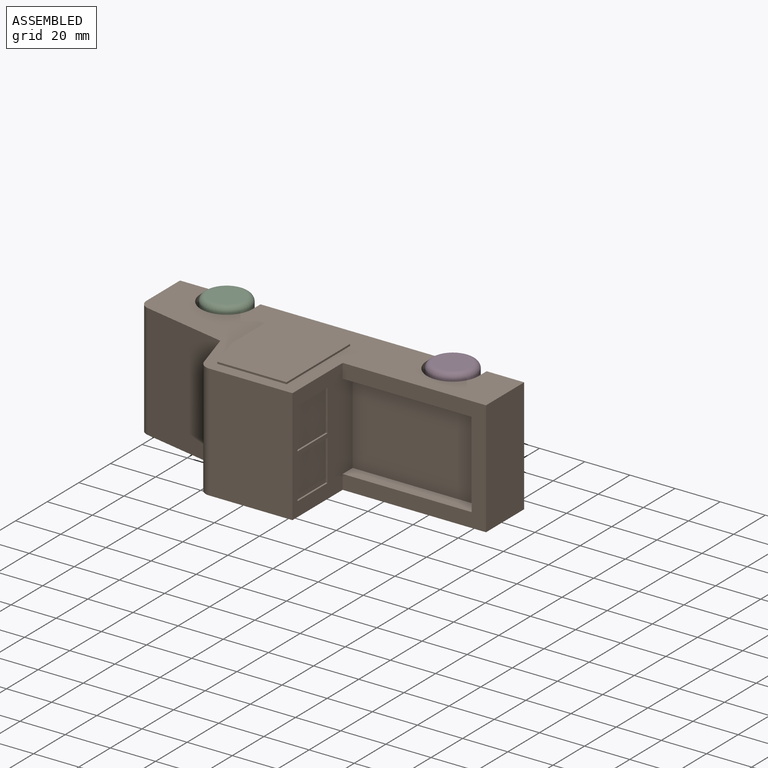
[diagram: assembled view]
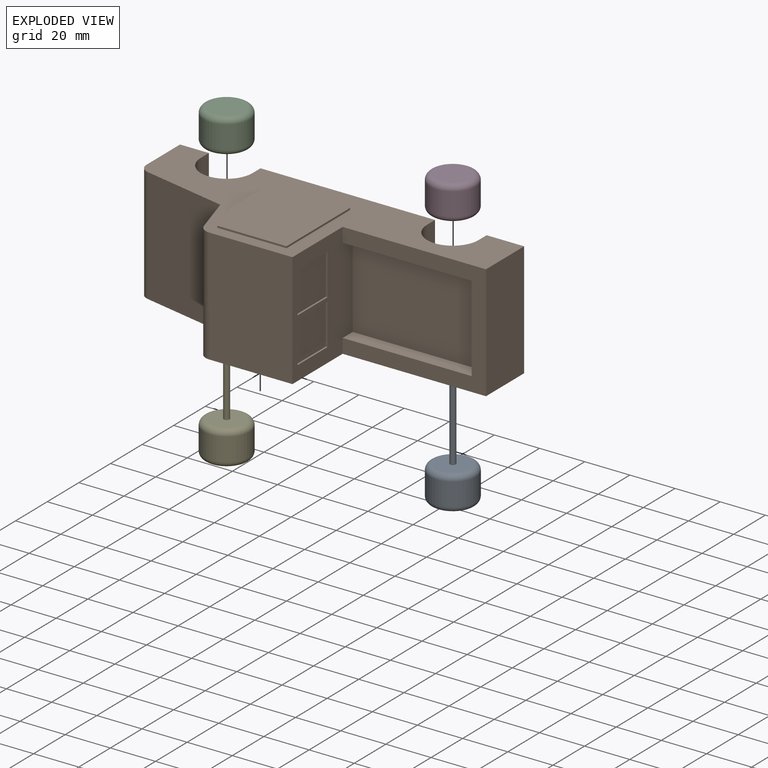
[diagram: exploded view]
GUIDED TOUR — MATED ASSEMBLY (Onshape document f75bfbf0f1ed032e9502031a, AutoMate assembly f75bfbf0f1ed032e9502031a_08e32ee1e0aaa2969070d386_a639f27beea9576678473115_default)

This assembly has 5 components, labeled P0..P4 below (a component is one placed occurrence of a part; the same part can appear more than once), held together by 4 mates. A mate is a constraint between two components; its type names the relative motion it leaves free:
  FASTENED — locks the two components together rigidly (no relative motion).
Axis/direction vectors are unit vectors and 'through' points are millimeter coordinates, both in the assembly's world frame.

MATES
  1. FASTENED "Fastened 4": P2 <-> P4, direction (0.000, 0.000, -1.000) through (-72.70, -48.30, 15.91) mm
  2. FASTENED "Fastened 3": P1 <-> P4, direction (0.000, 0.000, -1.000) through (-72.70, -48.30, -19.65) mm
  3. FASTENED "Fastened 1": P0 <-> P1, direction (0.000, 0.000, 1.000) through (27.46, -48.30, -19.65) mm
  4. FASTENED "Fastened 2": P3 <-> P0, direction (0.000, 0.000, -1.000) through (27.46, -48.30, 15.91) mm

ASSEMBLY ORDER
  1. P1 — the base component [order heuristic]
  2. P4 — core [order heuristic]
  3. P2 [order verified]
  4. P3 [order verified]
  5. P0 [order verified]
Order-tag legend:
  [order verified] — this step's position reverses a verified removal order: the component was checked to insert without passing through the ones already placed.
  [order heuristic] — the first 2 components form the assembly's core: parts whose collision-free extraction could not be verified, listed in mate-graph order.

Of the 5 components, 5 carry the full construction recipe — the FeatureScript program that regenerates the part's solid from scratch; the rest are supplied as boundary geometry only.
Each toured component is shown spotlighted twice — in the assembled view, then in the exploded view, where a leader line traces a displaced component back to its assembled socket (saturated green if recipe-attached, orange if geometry-only; every other component desaturated gray) — followed by its recipe or geometry summary and the mates that hold it.
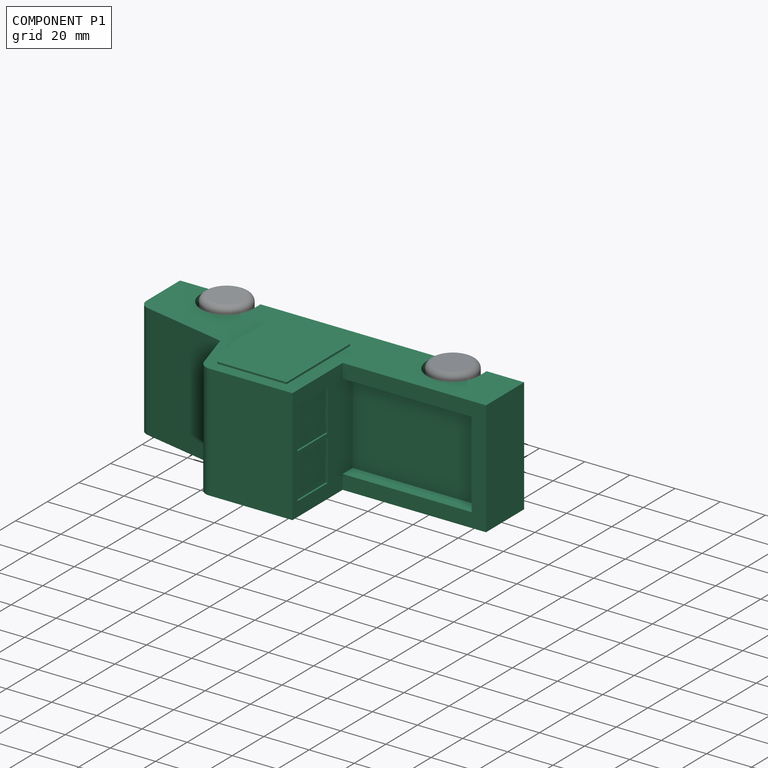
[diagram: component P1 — assembled]
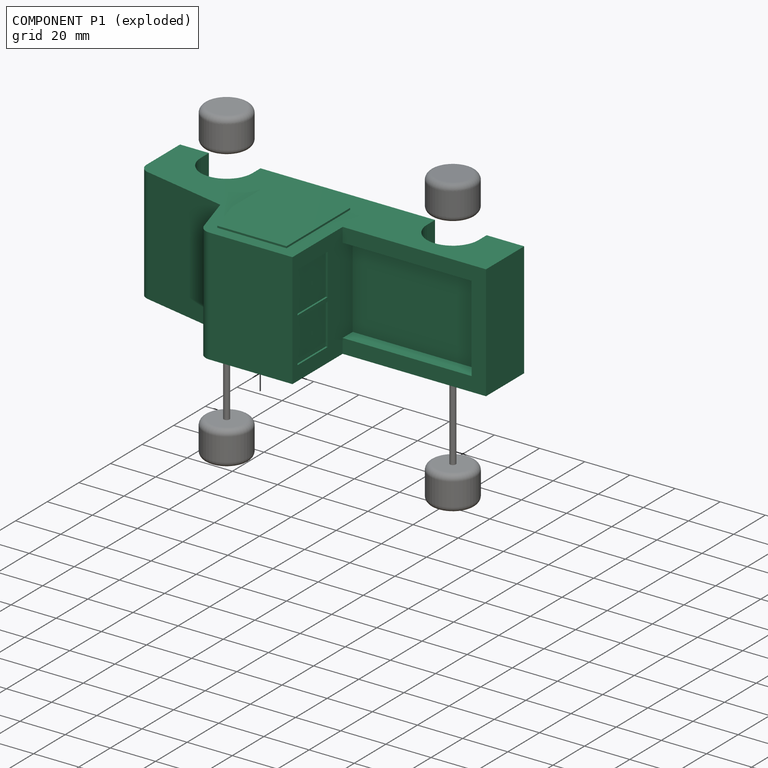
[diagram: component P1 — exploded]
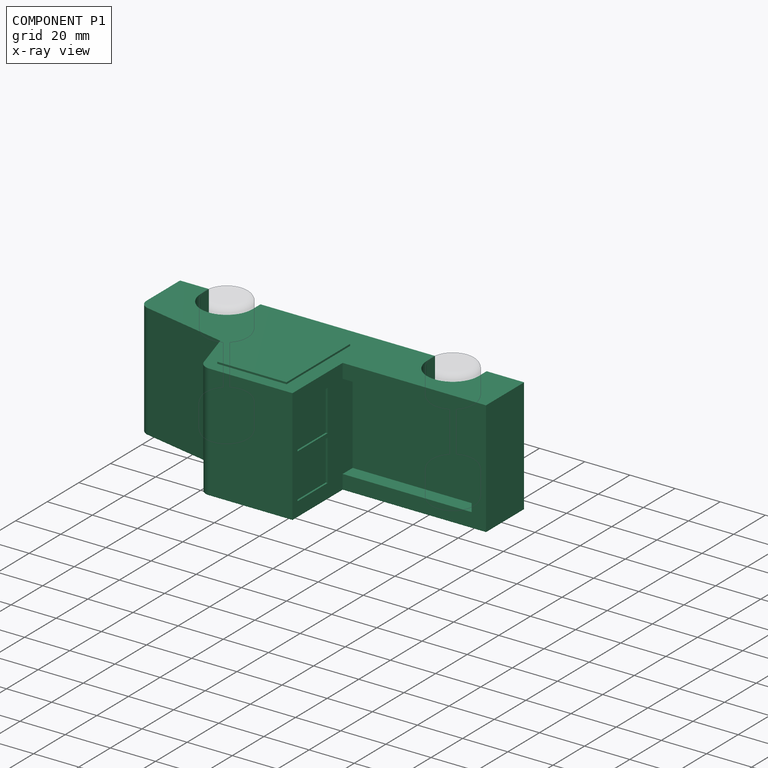
[diagram: component P1 — x-ray view]
COMPONENT P1 — recipe-attached (CADFS 00677583, mesh-verified: the recipe's output STEP matches this component's geometry to below the mesh-comparison resolution (tessellation chordal tolerance ~0.259 mm)).
Held by: FASTENED mate "Fastened 3" to P4; FASTENED mate "Fastened 1" to P0.
Construction recipe (FeatureScript — the CAD program that rebuilds this solid; sketch coordinates are in the units given by the * unit suffixes, e.g. mm):

FeatureScript 1511;
import(path : "onshape/std/geometry.fs", version : "1511.0");
import(path : "onshape/std/common.fs", version : "1511.0");
const mm = millimeter;
const VERTEX = EntityType.VERTEX;
const EDGE = EntityType.EDGE;
const FACE = EntityType.FACE;
const BODY = EntityType.BODY;
function v(x, y){return vector(x, y);}
function OD(order){return orderDisambiguation(order);}
function OSD(set){return originalSetDisambiguation(set);}
function TD(topology){return topologyDisambiguation(topology);}
function TDD(query){return trueDependencyDisambiguation(query);}
function sQuery(a, b, c) {return sketchEntityQuery(a, b, c);}

annotation { "Feature Type Name" : "Feature", "Feature Type Description" : "" }
export const myFeature = defineFeature(function(context is Context, id is Id, definition is map)
    precondition{}
    {
        {
            var Q0;
            Q0=qCreatedBy(makeId("Front.planeOp"),FACE);
            var sketch = newSketch(context, id + "F0", { "sketchPlane" : qUnion([Q0])});
            skLineSegment(sketch, "E0", {"start": v(-68.75, 0) * mm, "end": v(83.65, 0) * mm});
            skLineSegment(sketch, "E1", {"start": v(83.65, 0) * mm, "end": v(83.65, 19.05) * mm});
            skLineSegment(sketch, "E2", {"start": v(83.65, 19.05) * mm, "end": v(20.15, 19.05) * mm});
            skLineSegment(sketch, "E3", {"start": v(20.15, 19.05) * mm, "end": v(20.15, 50.8) * mm});
            skLineSegment(sketch, "E4", {"start": v(20.15, 50.8) * mm, "end": v(-20.49, 50.8) * mm});
            skLineSegment(sketch, "E5", {"start": v(-20.49, 50.8) * mm, "end": v(-27.1, 28.92) * mm});
            skLineSegment(sketch, "E6", {"start": v(-68.75, 0) * mm, "end": v(-68.75, 20.2) * mm});
            skLineSegment(sketch, "E7", {"start": v(-68.75, 20.2) * mm, "end": v(-27.1, 28.92) * mm});
            skArc(sketch, "E8", {"start": v(-33.12, 0) * mm, "mid": v(-44.55, 11.43) * mm, "end": v(-55.98, 0) * mm});
            skArc(sketch, "E9", {"start": v(67.04, 0) * mm, "mid": v(55.61, 11.43) * mm, "end": v(44.18, 0) * mm});
            skSolve(sketch);
        }
        {
            var Q0;
            Q0 = qSketchRegion(id + "F0", true);
            extrude(context, id + "F1", {"entities" : qUnion([Q0]), "depth" : 50.8 * mm, "offsetDistance" : 25.4 * mm});
        }
        {
            var Q0;
            Q0=makeQuery(id+"F1.opExtrude","SWEPT_FACE",FACE,{"disambiguationData":[OSD([sQuery(id+"F0.wireOp",EDGE,"E2")])]});
            var sketch = newSketch(context, id + "F2", { "sketchPlane" : qUnion([Q0])});
            skLineSegment(sketch, "E10", {"start": v(20.15, -6.35) * mm, "end": v(77.3, -6.35) * mm});
            skLineSegment(sketch, "E11", {"start": v(77.3, -6.35) * mm, "end": v(77.3, -44.45) * mm});
            skLineSegment(sketch, "E12", {"start": v(77.3, -44.45) * mm, "end": v(20.15, -44.45) * mm});
            skLineSegment(sketch, "E13", {"start": v(20.15, -44.45) * mm, "end": v(20.15, -6.35) * mm});
            skSolve(sketch);
        }
        {
            var Q0;
            Q0=makeQuery(id+"F2.imprint","IMPRINT",FACE,{"disambiguationData":[TD([[makeQuery(id+"F2.imprint","IMPRINT",EDGE,{"derivedFrom":sQuery(id+"F2.wireOp",EDGE,"E10")}),-1.0]])]});
            extrude(context, id + "F3", {"entities" : qUnion([Q0]), "operationType" : NewBodyOperationType.REMOVE, "oppositeDirection" : true, "depth" : 6.35 * mm, "offsetDistance" : 25.4 * mm});
        }
        {
            var Q0;
            Q0=makeQuery(id+"F1.opExtrude","SWEPT_FACE",FACE,{"disambiguationData":[OSD([sQuery(id+"F0.wireOp",EDGE,"E6")])]});
            var sketch = newSketch(context, id + "F4", { "sketchPlane" : qUnion([Q0])});
            skCircle(sketch, "E14", {"center": v(6.35, 9.84) * mm, "radius": 2.67 * mm});
            skCircle(sketch, "E15", {"center": v(44.45, 9.84) * mm, "radius": 2.67 * mm});
            skLineSegment(sketch, "E16.bottom", {"start": v(36.96, 6.5) * mm, "end": v(13.84, 6.5) * mm});
            skLineSegment(sketch, "E16.top", {"start": v(36.96, 13.1) * mm, "end": v(13.84, 13.1) * mm});
            skLineSegment(sketch, "E16.left", {"start": v(36.96, 6.5) * mm, "end": v(36.96, 13.1) * mm});
            skLineSegment(sketch, "E16.right", {"start": v(13.84, 6.5) * mm, "end": v(13.84, 13.1) * mm});
            skPoint(sketch, "E16.middle", {"position": v(25.4, 9.8) * mm});
            skLineSegment(sketch, "E17.bottom", {"start": v(36.2, 7.27) * mm, "end": v(14.6, 7.27) * mm});
            skLineSegment(sketch, "E17.top", {"start": v(36.2, 12.35) * mm, "end": v(14.6, 12.35) * mm});
            skLineSegment(sketch, "E17.left", {"start": v(36.2, 7.27) * mm, "end": v(36.2, 12.35) * mm});
            skLineSegment(sketch, "E17.right", {"start": v(14.6, 7.27) * mm, "end": v(14.6, 12.35) * mm});
            skLineSegment(sketch, "E18", {"start": v(18.18, 12.35) * mm, "end": v(18.18, 7.27) * mm});
            skLineSegment(sketch, "E19", {"start": v(19.16, 12.35) * mm, "end": v(19.16, 7.27) * mm});
            skLineSegment(sketch, "E20.1.0.0", {"start": v(21.56, 12.35) * mm, "end": v(21.56, 7.27) * mm});
            skLineSegment(sketch, "E20.1.0.1", {"start": v(22.54, 12.35) * mm, "end": v(22.54, 7.27) * mm});
            skLineSegment(sketch, "E20.2.0.0", {"start": v(24.94, 12.35) * mm, "end": v(24.94, 7.27) * mm});
            skLineSegment(sketch, "E20.2.0.1", {"start": v(25.92, 12.35) * mm, "end": v(25.92, 7.27) * mm});
            skLineSegment(sketch, "E20.3.0.0", {"start": v(28.32, 12.35) * mm, "end": v(28.32, 7.27) * mm});
            skLineSegment(sketch, "E20.3.0.1", {"start": v(29.3, 12.35) * mm, "end": v(29.3, 7.27) * mm});
            skLineSegment(sketch, "E20.4.0.0", {"start": v(31.7, 12.35) * mm, "end": v(31.7, 7.27) * mm});
            skLineSegment(sketch, "E20.4.0.1", {"start": v(32.67, 12.35) * mm, "end": v(32.67, 7.27) * mm});
            skLineSegment(sketch, "E20.direction1", {"start": v(18.18, 7.27) * mm, "end": v(21.56, 7.27) * mm, "construction": true});
            skSolve(sketch);
        }
        {
            var Q0;
            Q0=makeQuery(id+"F4.imprint","IMPRINT",FACE,{"disambiguationData":[TD([[makeQuery(id+"F4.imprint","IMPRINT",EDGE,{"derivedFrom":sQuery(id+"F4.wireOp",EDGE,"E16.bottom")}),-1.0]])]});
            var Q1;
            {var subQ0=sQuery(id+"F4.wireOp",EDGE,"E18");Q1=makeQuery(id+"F4.imprint","IMPRINT",FACE,{"disambiguationData":[TD([[makeQuery(id+"F4.imprint","IMPRINT",EDGE,{"derivedFrom":subQ0}),1.0]])]});}
            var Q2;
            {var subQ0=sQuery(id+"F4.wireOp",EDGE,"E20.1.0.0");Q2=makeQuery(id+"F4.imprint","IMPRINT",FACE,{"disambiguationData":[TD([[makeQuery(id+"F4.imprint","IMPRINT",EDGE,{"derivedFrom":subQ0}),1.0]])]});}
            var Q3;
            {var subQ0=sQuery(id+"F4.wireOp",EDGE,"E20.2.0.0");Q3=makeQuery(id+"F4.imprint","IMPRINT",FACE,{"disambiguationData":[TD([[makeQuery(id+"F4.imprint","IMPRINT",EDGE,{"derivedFrom":subQ0}),1.0]])]});}
            var Q4;
            {var subQ0=sQuery(id+"F4.wireOp",EDGE,"E20.3.0.0");Q4=makeQuery(id+"F4.imprint","IMPRINT",FACE,{"disambiguationData":[TD([[makeQuery(id+"F4.imprint","IMPRINT",EDGE,{"derivedFrom":subQ0}),1.0]])]});}
            var Q5;
            {var subQ0=sQuery(id+"F4.wireOp",EDGE,"E20.4.0.0");Q5=makeQuery(id+"F4.imprint","IMPRINT",FACE,{"disambiguationData":[TD([[makeQuery(id+"F4.imprint","IMPRINT",EDGE,{"derivedFrom":subQ0}),1.0]])]});}
            extrude(context, id + "F5", {"entities" : qUnion([Q0, Q1, Q2, Q3, Q4, Q5]), "operationType" : NewBodyOperationType.ADD, "depth" : 2.54 * mm, "offsetDistance" : 25.4 * mm});
        }
        {
            var Q0;
            Q0=makeQuery(id+"F4.imprint","IMPRINT",FACE,{"disambiguationData":[TD([[makeQuery(id+"F4.imprint","IMPRINT",EDGE,{"derivedFrom":sQuery(id+"F4.wireOp",EDGE,"E14")}),1.0]])]});
            var Q1;
            Q1=makeQuery(id+"F4.imprint","IMPRINT",FACE,{"disambiguationData":[TD([[makeQuery(id+"F4.imprint","IMPRINT",EDGE,{"derivedFrom":sQuery(id+"F4.wireOp",EDGE,"E15")}),1.0]])]});
            extrude(context, id + "F6", {"entities" : qUnion([Q0, Q1]), "operationType" : NewBodyOperationType.ADD, "depth" : 1.27 * mm, "offsetDistance" : 25.4 * mm});
        }
        {
            var Q0;
            Q0=makeQuery(id+"F1.opExtrude","SWEPT_FACE",FACE,{"disambiguationData":[OSD([sQuery(id+"F0.wireOp",EDGE,"E5")])]});
            var sketch = newSketch(context, id + "F7", { "sketchPlane" : qUnion([Q0])});
            skLineSegment(sketch, "E21.bottom", {"start": v(47.98, 22.7) * mm, "end": v(2.26, 22.7) * mm});
            skLineSegment(sketch, "E21.top", {"start": v(47.98, 40.22) * mm, "end": v(2.26, 40.22) * mm});
            skLineSegment(sketch, "E21.left", {"start": v(47.98, 22.7) * mm, "end": v(47.98, 40.22) * mm});
            skLineSegment(sketch, "E21.right", {"start": v(2.26, 22.7) * mm, "end": v(2.26, 40.22) * mm});
            skPoint(sketch, "E21.middle", {"position": v(25.12, 31.46) * mm});
            skLineSegment(sketch, "E22", {"start": v(33.56, 22.7) * mm, "end": v(32.22, 29.14) * mm});
            skLineSegment(sketch, "E23", {"start": v(32.22, 29.14) * mm, "end": v(29.43, 33.12) * mm});
            skLineSegment(sketch, "E24", {"start": v(29.43, 33.12) * mm, "end": v(30.82, 29.14) * mm});
            skPoint(sketch, "E24.endSnap0", {"position": v(30.82, 31.13) * mm});
            skLineSegment(sketch, "E25", {"start": v(30.82, 29.14) * mm, "end": v(32.22, 22.7) * mm});
            skLineSegment(sketch, "E26.1.0.0", {"start": v(17.81, 22.7) * mm, "end": v(16.47, 29.14) * mm});
            skLineSegment(sketch, "E26.1.0.1", {"start": v(16.47, 29.14) * mm, "end": v(13.68, 33.12) * mm});
            skLineSegment(sketch, "E26.1.0.2", {"start": v(13.68, 33.12) * mm, "end": v(15.08, 29.14) * mm});
            skLineSegment(sketch, "E26.1.0.3", {"start": v(15.08, 29.14) * mm, "end": v(16.47, 22.7) * mm});
            skLineSegment(sketch, "E26.direction1", {"start": v(33.56, 22.7) * mm, "end": v(17.81, 22.7) * mm, "construction": true});
            skSolve(sketch);
        }
        {
            var Q0;
            Q0=makeQuery(id+"F7.imprint","IMPRINT",FACE,{"disambiguationData":[TD([[makeQuery(id+"F7.imprint","IMPRINT",EDGE,{"derivedFrom":sQuery(id+"F7.wireOp",EDGE,"E21.top")}),1.0]])]});
            extrude(context, id + "F8", {"entities" : qUnion([Q0]), "operationType" : NewBodyOperationType.REMOVE, "oppositeDirection" : true, "depth" : 0.8 * mm, "offsetDistance" : 25.4 * mm});
        }
        {
            var Q0;
            Q0=makeQuery(id+"F1.opExtrude","SWEPT_EDGE",EDGE,{"disambiguationData":[OSD([sQuery(id+"F0.wireOp",EDGE,"E6"),sQuery(id+"F0.wireOp",EDGE,"E7")])]});
            var Q1;
            Q1=makeQuery(id+"F1.opExtrude","SWEPT_EDGE",EDGE,{"disambiguationData":[OSD([sQuery(id+"F0.wireOp",EDGE,"E4"),sQuery(id+"F0.wireOp",EDGE,"E5")])]});
            fillet(context, id + "F9", {"entities" : qUnion([Q0, Q1]), "radius" : 5.08 * mm, "tangentPropagation" : true, "allowEdgeOverflow" : false});
        }
        {
            var Q0;
            Q0=makeQuery(id+"F1.opExtrude","CAP_FACE",FACE,{"disambiguationData":[OSD([sQuery(id+"F0.wireOp",EDGE,"E0"),sQuery(id+"F0.wireOp",EDGE,"E1"),sQuery(id+"F0.wireOp",EDGE,"E2"),sQuery(id+"F0.wireOp",EDGE,"E3"),sQuery(id+"F0.wireOp",EDGE,"E4"),sQuery(id+"F0.wireOp",EDGE,"E5"),sQuery(id+"F0.wireOp",EDGE,"E6"),sQuery(id+"F0.wireOp",EDGE,"E7")])],"isStart":false});
            var sketch = newSketch(context, id + "F10", { "sketchPlane" : qUnion([Q0])});
            skLineSegment(sketch, "E27", {"start": v(-16.71, 45.72) * mm, "end": v(-21.58, 29.64) * mm});
            skLineSegment(sketch, "E28", {"start": v(-21.58, 29.64) * mm, "end": v(-21.58, 5.51) * mm});
            skLineSegment(sketch, "E29", {"start": v(-21.58, 5.51) * mm, "end": v(13.98, 5.51) * mm});
            skLineSegment(sketch, "E30", {"start": v(13.98, 5.51) * mm, "end": v(14, 45.72) * mm});
            skLineSegment(sketch, "E31", {"start": v(-16.71, 45.72) * mm, "end": v(14, 45.72) * mm});
            skSolve(sketch);
        }
        {
            var Q0;
            Q0=makeQuery(id+"F10.imprint","IMPRINT",FACE,{"disambiguationData":[TD([[makeQuery(id+"F10.imprint","IMPRINT",EDGE,{"derivedFrom":sQuery(id+"F10.wireOp",EDGE,"E27")}),1.0]])]});
            extrude(context, id + "F11", {"entities" : qUnion([Q0]), "operationType" : NewBodyOperationType.ADD, "depth" : 0.8 * mm, "offsetDistance" : 25.4 * mm});
        }
        {
            var Q0;
            Q0=makeQuery(id+"F1.opExtrude","CAP_FACE",FACE,{"disambiguationData":[OSD([sQuery(id+"F0.wireOp",EDGE,"E0"),sQuery(id+"F0.wireOp",EDGE,"E1"),sQuery(id+"F0.wireOp",EDGE,"E2"),sQuery(id+"F0.wireOp",EDGE,"E3"),sQuery(id+"F0.wireOp",EDGE,"E4"),sQuery(id+"F0.wireOp",EDGE,"E5"),sQuery(id+"F0.wireOp",EDGE,"E6"),sQuery(id+"F0.wireOp",EDGE,"E7")])],"isStart":true});
            var sketch = newSketch(context, id + "F12", { "sketchPlane" : qUnion([Q0])});
            skLineSegment(sketch, "E32", {"start": v(16.71, 45.72) * mm, "end": v(21.57, 29.65) * mm});
            skLineSegment(sketch, "E33", {"start": v(21.57, 29.65) * mm, "end": v(21.57, 5.52) * mm});
            skLineSegment(sketch, "E34", {"start": v(21.57, 5.52) * mm, "end": v(-14, 5.52) * mm});
            skLineSegment(sketch, "E35", {"start": v(-14, 5.52) * mm, "end": v(-14, 45.72) * mm});
            skLineSegment(sketch, "E36", {"start": v(-14, 45.72) * mm, "end": v(16.71, 45.72) * mm});
            skSolve(sketch);
        }
        {
            var Q0;
            Q0=makeQuery(id+"F12.imprint","IMPRINT",FACE,{"disambiguationData":[TD([[makeQuery(id+"F12.imprint","IMPRINT",EDGE,{"derivedFrom":sQuery(id+"F12.wireOp",EDGE,"E32")}),-1.0]])]});
            extrude(context, id + "F13", {"entities" : qUnion([Q0]), "operationType" : NewBodyOperationType.ADD, "depth" : 0.8 * mm, "offsetDistance" : 25.4 * mm});
        }
        {
            var Q0;
            Q0=makeQuery(id+"F13.opExtrude","CAP_FACE",FACE,{"disambiguationData":[OSD([sQuery(id+"F12.wireOp",EDGE,"E32"),sQuery(id+"F12.wireOp",EDGE,"E33"),sQuery(id+"F12.wireOp",EDGE,"E34"),sQuery(id+"F12.wireOp",EDGE,"E35"),sQuery(id+"F12.wireOp",EDGE,"E36")])],"isStart":false});
            var sketch = newSketch(context, id + "F14", { "sketchPlane" : qUnion([Q0])});
            skLineSegment(sketch, "E37", {"start": v(18.82, 29.65) * mm, "end": v(14.9, 43.16) * mm});
            skLineSegment(sketch, "E38", {"start": v(14.9, 43.16) * mm, "end": v(-11.56, 43.16) * mm});
            skLineSegment(sketch, "E39", {"start": v(-11.56, 43.16) * mm, "end": v(-11.56, 29.65) * mm});
            skLineSegment(sketch, "E40", {"start": v(-11.56, 29.65) * mm, "end": v(18.82, 29.65) * mm});
            skLineSegment(sketch, "E41.bottom", {"start": v(-11.56, 22.39) * mm, "end": v(-7, 22.39) * mm});
            skLineSegment(sketch, "E41.top", {"start": v(-11.56, 20.6) * mm, "end": v(-7, 20.6) * mm});
            skLineSegment(sketch, "E41.left", {"start": v(-11.56, 22.39) * mm, "end": v(-11.56, 20.6) * mm});
            skLineSegment(sketch, "E41.right", {"start": v(-7, 22.39) * mm, "end": v(-7, 20.6) * mm});
            skSolve(sketch);
        }
        {
            var Q0;
            Q0=makeQuery(id+"F14.imprint","IMPRINT",FACE,{"disambiguationData":[TD([[makeQuery(id+"F14.imprint","IMPRINT",EDGE,{"derivedFrom":sQuery(id+"F14.wireOp",EDGE,"E37")}),1.0]])]});
            extrude(context, id + "F15", {"entities" : qUnion([Q0]), "operationType" : NewBodyOperationType.ADD, "oppositeDirection" : true, "depth" : 0.25 * mm, "offsetDistance" : 25.4 * mm});
        }
        {
            var Q0;
            Q0=makeQuery(id+"F3.boolean.opBoolean","MERGE",FACE,{"derivedFrom":[makeQuery(id+"F1.opExtrude","SWEPT_FACE",FACE,{"disambiguationData":[OSD([sQuery(id+"F0.wireOp",EDGE,"E3")])]}),makeQuery(id+"F3.opExtrude","SWEPT_FACE",FACE,{"disambiguationData":[OSD([sQuery(id+"F2.wireOp",EDGE,"E13")])]})]});
            var sketch = newSketch(context, id + "F16", { "sketchPlane" : qUnion([Q0])});
            skLineSegment(sketch, "E42.bottom", {"start": v(-6.35, 28.57) * mm, "end": v(-44.45, 28.57) * mm});
            skLineSegment(sketch, "E42.top", {"start": v(-6.35, 47.62) * mm, "end": v(-44.45, 47.62) * mm});
            skLineSegment(sketch, "E42.left", {"start": v(-6.35, 28.57) * mm, "end": v(-6.35, 47.62) * mm});
            skLineSegment(sketch, "E42.right", {"start": v(-44.45, 28.57) * mm, "end": v(-44.45, 47.62) * mm});
            skPoint(sketch, "E42.middle", {"position": v(-25.4, 38.1) * mm});
            skLineSegment(sketch, "E43.bottom", {"start": v(-24.51, 28.57) * mm, "end": v(-26.29, 28.57) * mm});
            skLineSegment(sketch, "E43.top", {"start": v(-24.51, 47.62) * mm, "end": v(-26.29, 47.62) * mm});
            skLineSegment(sketch, "E43.left", {"start": v(-24.51, 28.57) * mm, "end": v(-24.51, 47.62) * mm});
            skLineSegment(sketch, "E43.right", {"start": v(-26.29, 28.57) * mm, "end": v(-26.29, 47.62) * mm});
            skSolve(sketch);
        }
        {
            var Q0;
            {var subQ0=sQuery(id+"F16.wireOp",EDGE,"E42.right");Q0=makeQuery(id+"F16.imprint","IMPRINT",FACE,{"disambiguationData":[TD([[makeQuery(id+"F16.imprint","IMPRINT",EDGE,{"derivedFrom":subQ0}),-1.0]])]});}
            var Q1;
            {var subQ0=sQuery(id+"F16.wireOp",EDGE,"E42.left");Q1=makeQuery(id+"F16.imprint","IMPRINT",FACE,{"disambiguationData":[TD([[makeQuery(id+"F16.imprint","IMPRINT",EDGE,{"derivedFrom":subQ0}),1.0]])]});}
            extrude(context, id + "F17", {"entities" : qUnion([Q0, Q1]), "operationType" : NewBodyOperationType.REMOVE, "oppositeDirection" : true, "depth" : 0.8 * mm, "offsetDistance" : 25.4 * mm});
        }
        {
            var Q0;
            {var subQ0=sQuery(id+"F0.wireOp",EDGE,"E9");Q0=makeQuery(id+"F0.imprint","IMPRINT",FACE,{"disambiguationData":[TD([[makeQuery(id+"F0.imprint","IMPRINT",EDGE,{"derivedFrom":subQ0}),1.0]])]});}
            var Q1;
            {var subQ0=sQuery(id+"F0.wireOp",EDGE,"E8");Q1=makeQuery(id+"F0.imprint","IMPRINT",FACE,{"disambiguationData":[TD([[makeQuery(id+"F0.imprint","IMPRINT",EDGE,{"derivedFrom":subQ0}),1.0]])]});}
            extrude(context, id + "F18", {"entities" : qUnion([Q0, Q1]), "operationType" : NewBodyOperationType.REMOVE, "depth" : 50.8 * mm, "offsetDistance" : 25.4 * mm});
        }
        {
            var Q0;
            {var subQ0=sQuery(id+"F0.wireOp",EDGE,"E7");var subQ1=sQuery(id+"F0.wireOp",EDGE,"E6");var subQ2=sQuery(id+"F0.wireOp",EDGE,"E5");var subQ3=sQuery(id+"F0.wireOp",EDGE,"E4");var subQ4=sQuery(id+"F0.wireOp",EDGE,"E3");var subQ5=sQuery(id+"F0.wireOp",EDGE,"E2");var subQ6=sQuery(id+"F0.wireOp",EDGE,"E1");var subQ7=sQuery(id+"F0.wireOp",EDGE,"E0");Q0=makeQuery(id+"F18.boolean.opBoolean","SPLIT",FACE,{"disambiguationData":[TD([makeQuery(id+"F1.opExtrude","CAP_FACE",FACE,{"disambiguationData":[OSD([subQ7,subQ6,subQ5,subQ4,subQ3,subQ2,subQ1,subQ0])],"isStart":true}),makeQuery(id+"F1.opExtrude","CAP_FACE",FACE,{"disambiguationData":[OSD([subQ7,subQ6,subQ5,subQ4,subQ3,subQ2,subQ1,subQ0])],"isStart":false}),makeQuery(id+"F1.opExtrude","SWEPT_FACE",FACE,{"disambiguationData":[OSD([subQ1])]}),makeQuery(id+"F18.opExtrude","SWEPT_FACE",FACE,{"disambiguationData":[OSD([sQuery(id+"F0.wireOp",EDGE,"E8")])]})])],"derivedFrom":makeQuery(id+"F1.opExtrude","SWEPT_FACE",FACE,{"disambiguationData":[OSD([subQ7])]})});}
            var sketch = newSketch(context, id + "F19", { "sketchPlane" : qUnion([Q0])});
            skLineSegment(sketch, "E44.bottom", {"start": v(69.82, 12.7) * mm, "end": v(-57.18, 12.7) * mm});
            skLineSegment(sketch, "E44.top", {"start": v(69.82, 38.1) * mm, "end": v(-57.18, 38.1) * mm});
            skLineSegment(sketch, "E44.left", {"start": v(69.82, 12.7) * mm, "end": v(69.82, 38.1) * mm});
            skLineSegment(sketch, "E44.right", {"start": v(-57.18, 12.7) * mm, "end": v(-57.18, 38.1) * mm});
            skPoint(sketch, "E44.middle", {"position": v(6.32, 25.4) * mm});
            skSolve(sketch);
        }
        {
            var Q0;
            Q0 = qSketchRegion(id + "F19", true);
            extrude(context, id + "F20", {"entities" : qUnion([Q0]), "operationType" : NewBodyOperationType.ADD, "oppositeDirection" : true, "depth" : 12.7 * mm, "offsetDistance" : 25.4 * mm});
        }
        {
            var Q0;
            {var subQ0=sQuery(id+"F0.wireOp",EDGE,"E7");var subQ1=sQuery(id+"F0.wireOp",EDGE,"E6");var subQ2=sQuery(id+"F0.wireOp",EDGE,"E5");var subQ3=sQuery(id+"F0.wireOp",EDGE,"E4");var subQ4=sQuery(id+"F0.wireOp",EDGE,"E3");var subQ5=sQuery(id+"F0.wireOp",EDGE,"E2");var subQ6=sQuery(id+"F0.wireOp",EDGE,"E1");var subQ7=sQuery(id+"F0.wireOp",EDGE,"E0");var subQ8=makeQuery(id+"F1.opExtrude","CAP_FACE",FACE,{"disambiguationData":[OSD([subQ7,subQ6,subQ5,subQ4,subQ3,subQ2,subQ1,subQ0])],"isStart":true});var subQ9=makeQuery(id+"F1.opExtrude","CAP_FACE",FACE,{"disambiguationData":[OSD([subQ7,subQ6,subQ5,subQ4,subQ3,subQ2,subQ1,subQ0])],"isStart":false});var subQ10=makeQuery(id+"F18.opExtrude","SWEPT_FACE",FACE,{"disambiguationData":[OSD([sQuery(id+"F0.wireOp",EDGE,"E8")])]});var subQ11=makeQuery(id+"F18.opExtrude","SWEPT_FACE",FACE,{"disambiguationData":[OSD([sQuery(id+"F0.wireOp",EDGE,"E9")])]});var subQ12=makeQuery(id+"F1.opExtrude","SWEPT_FACE",FACE,{"disambiguationData":[OSD([subQ7])]});Q0=makeQuery(id+"F20.boolean.opBoolean","MERGE",FACE,{"derivedFrom":[makeQuery(id+"F18.boolean.opBoolean","SPLIT",FACE,{"disambiguationData":[TD([subQ8,subQ9,makeQuery(id+"F1.opExtrude","SWEPT_FACE",FACE,{"disambiguationData":[OSD([subQ1])]}),subQ10])],"derivedFrom":subQ12}),makeQuery(id+"F18.boolean.opBoolean","SPLIT",FACE,{"disambiguationData":[TD([subQ8,subQ9,makeQuery(id+"F1.opExtrude","SWEPT_FACE",FACE,{"disambiguationData":[OSD([subQ6])]}),subQ11])],"derivedFrom":subQ12}),makeQuery(id+"F18.boolean.opBoolean","SPLIT",FACE,{"disambiguationData":[TD([subQ8,subQ9,subQ10,subQ11])],"derivedFrom":subQ12}),makeQuery(id+"F20.opExtrude","CAP_FACE",FACE,{"disambiguationData":[OSD([sQuery(id+"F19.wireOp",EDGE,"E44.bottom"),sQuery(id+"F19.wireOp",EDGE,"E44.top"),sQuery(id+"F19.wireOp",EDGE,"E44.left"),sQuery(id+"F19.wireOp",EDGE,"E44.right")])],"isStart":true})]});}
            extrude(context, id + "F21", {"entities" : qUnion([Q0]), "operationType" : NewBodyOperationType.ADD, "depth" : 5.08 * mm, "offsetDistance" : 25.4 * mm});
        }
        {
            var Q0;
            {var subQ1=makeQuery(id+"F18.boolean.opBoolean","COPY",FACE,{"derivedFrom":makeQuery(id+"F18.opExtrude","SWEPT_FACE",FACE,{"disambiguationData":[OSD([sQuery(id+"F0.wireOp",EDGE,"E9")])]})});var subQ2=sQuery(id+"F19.wireOp",EDGE,"E44.bottom");var subQ3=makeQuery(id+"F20.opExtrude","SWEPT_FACE",FACE,{"disambiguationData":[OSD([subQ2])]});Q0=makeQuery(id+"F21.boolean.opBoolean","MERGE",FACE,{"derivedFrom":[makeQuery(id+"F20.boolean.opBoolean","SPLIT",FACE,{"disambiguationData":[TD([subQ1])],"derivedFrom":subQ3}),makeQuery(id+"F21.opExtrude","SWEPT_FACE",FACE,{"disambiguationData":[OSD([subQ2]),TDD([makeQuery(id+"F20.boolean.opBoolean","SPLIT",EDGE,{"disambiguationData":[TD([subQ1])],"derivedFrom":makeQuery(id+"F20.opExtrude","CAP_EDGE",EDGE,{"disambiguationData":[OSD([subQ2])],"isStart":true})})])]})]});}
            var sketch = newSketch(context, id + "F22", { "sketchPlane" : qUnion([Q0])});
            skCircle(sketch, "E45", {"center": v(-55.61, 0) * mm, "radius": 1.4 * mm});
            skSolve(sketch);
        }
        {
            var Q0;
            {var subQ1=makeQuery(id+"F18.boolean.opBoolean","COPY",FACE,{"derivedFrom":makeQuery(id+"F18.opExtrude","SWEPT_FACE",FACE,{"disambiguationData":[OSD([sQuery(id+"F0.wireOp",EDGE,"E8")])]})});var subQ2=sQuery(id+"F19.wireOp",EDGE,"E44.bottom");var subQ3=makeQuery(id+"F20.opExtrude","SWEPT_FACE",FACE,{"disambiguationData":[OSD([subQ2])]});Q0=makeQuery(id+"F21.boolean.opBoolean","MERGE",FACE,{"derivedFrom":[makeQuery(id+"F20.boolean.opBoolean","SPLIT",FACE,{"disambiguationData":[TD([subQ1])],"derivedFrom":subQ3}),makeQuery(id+"F21.opExtrude","SWEPT_FACE",FACE,{"disambiguationData":[OSD([subQ2]),TDD([makeQuery(id+"F20.boolean.opBoolean","SPLIT",EDGE,{"disambiguationData":[TD([subQ1])],"derivedFrom":makeQuery(id+"F20.opExtrude","CAP_EDGE",EDGE,{"disambiguationData":[OSD([subQ2])],"isStart":true})})])]})]});}
            var sketch = newSketch(context, id + "F23", { "sketchPlane" : qUnion([Q0])});
            skCircle(sketch, "E46", {"center": v(44.55, 0) * mm, "radius": 1.4 * mm});
            skSolve(sketch);
        }
        {
            var Q0;
            Q0=makeQuery(id+"F22.imprint","IMPRINT",FACE,{"disambiguationData":[TD([[makeQuery(id+"F22.imprint","IMPRINT",EDGE,{"derivedFrom":sQuery(id+"F22.wireOp",EDGE,"E45")}),1.0]])]});
            var Q1;
            Q1=makeQuery(id+"F23.imprint","IMPRINT",FACE,{"disambiguationData":[TD([[makeQuery(id+"F23.imprint","IMPRINT",EDGE,{"derivedFrom":sQuery(id+"F23.wireOp",EDGE,"E46")}),1.0]])]});
            extrude(context, id + "F24", {"entities" : qUnion([Q0, Q1]), "operationType" : NewBodyOperationType.REMOVE, "oppositeDirection" : true, "depth" : 25.4 * mm, "offsetDistance" : 25.4 * mm});
        }
    });
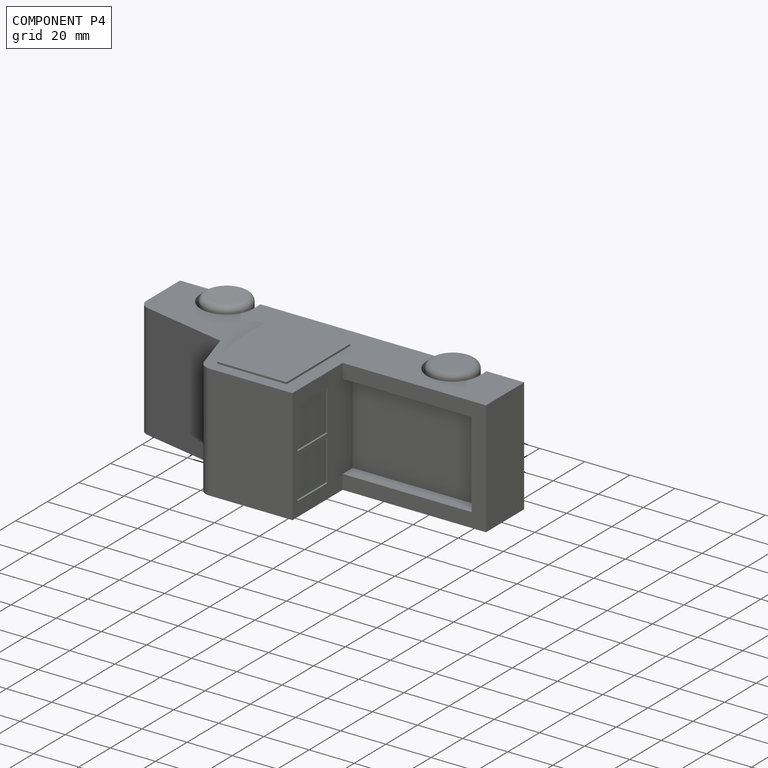
[diagram: component P4 — assembled]
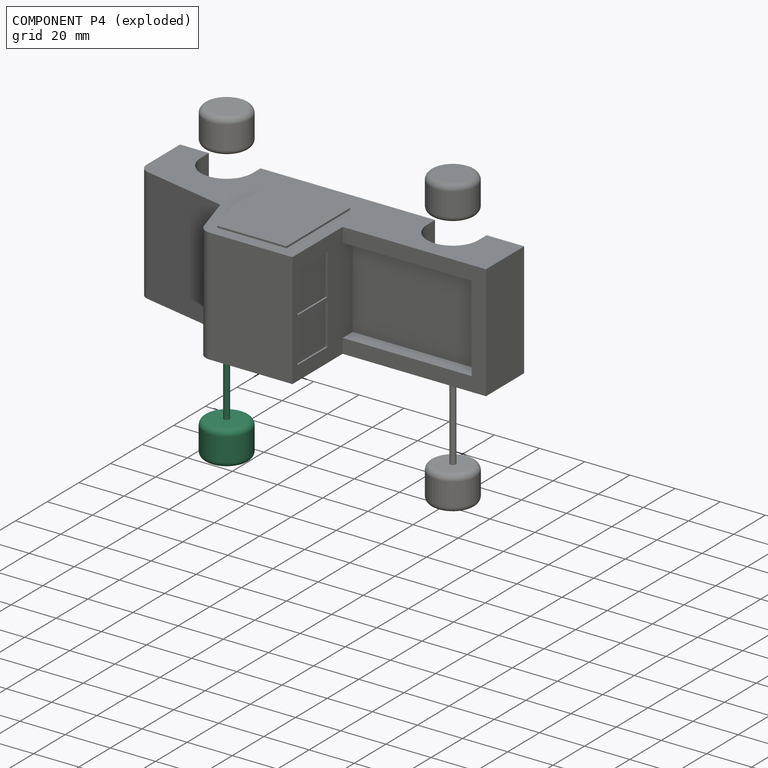
[diagram: component P4 — exploded]
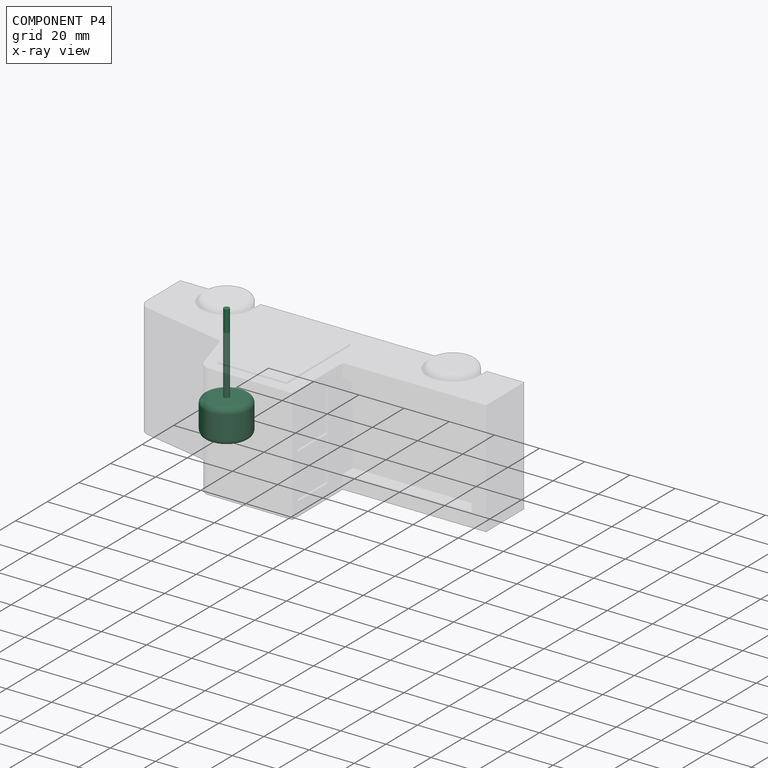
[diagram: component P4 — x-ray view]
COMPONENT P4 — same part as P0 (CADFS 00677584); its construction recipe is shown at P0.
Held by: FASTENED mate "Fastened 4" to P2; FASTENED mate "Fastened 3" to P1.
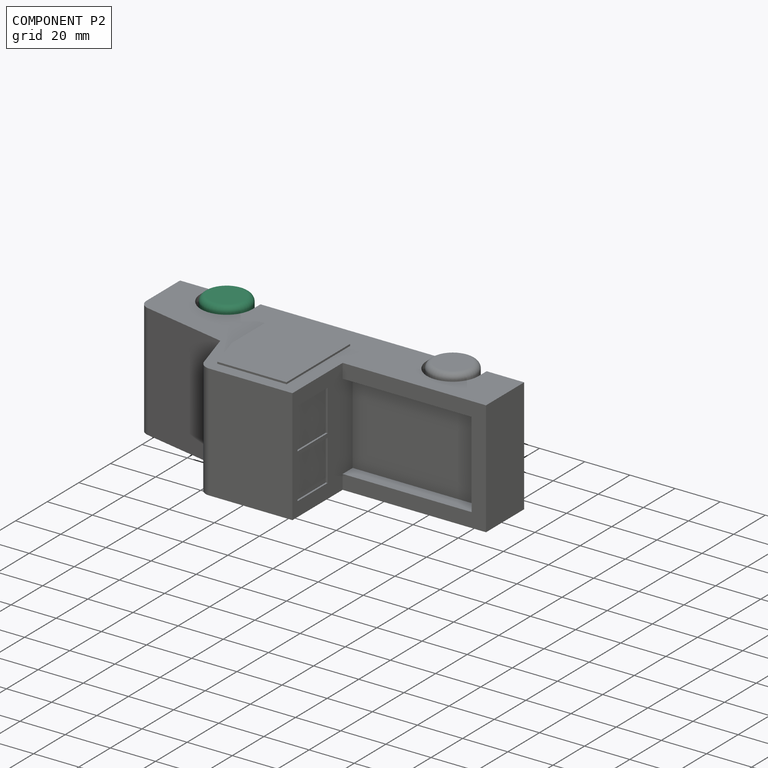
[diagram: component P2 — assembled]
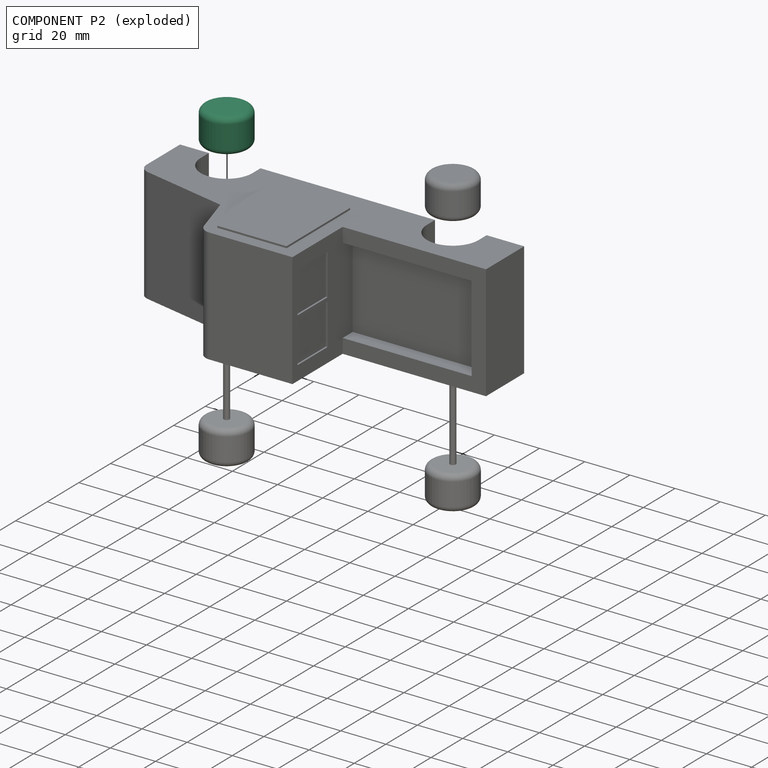
[diagram: component P2 — exploded]
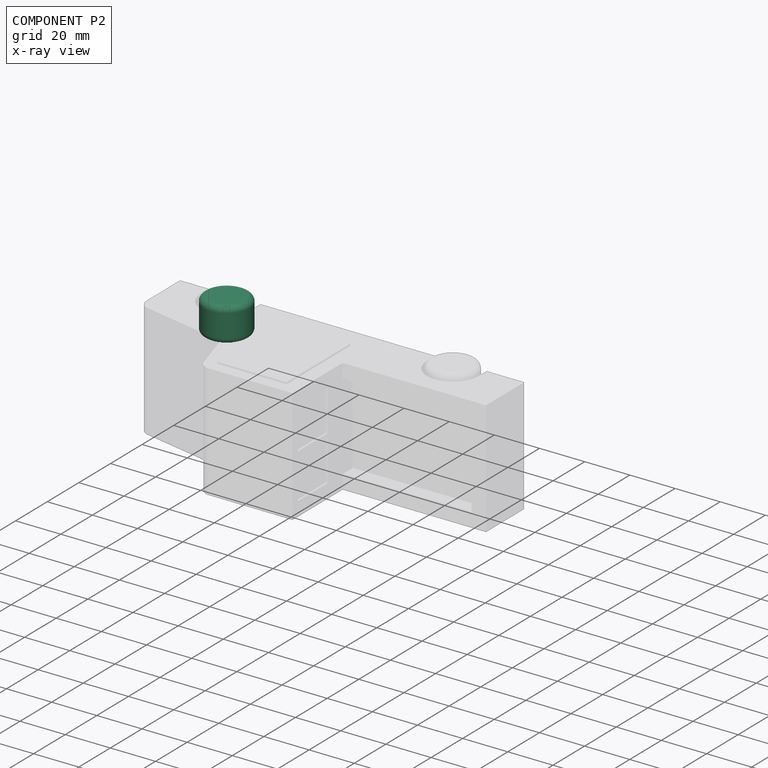
[diagram: component P2 — x-ray view]
COMPONENT P2 — recipe-attached (CADFS 00677585, mesh-verified: the recipe's output STEP matches this component's geometry to below the mesh-comparison resolution (tessellation chordal tolerance ~0.0487 mm)).
Held by: FASTENED mate "Fastened 4" to P4.
Construction recipe (FeatureScript — the CAD program that rebuilds this solid; sketch coordinates are in the units given by the * unit suffixes, e.g. mm):

FeatureScript 1511;
import(path : "onshape/std/geometry.fs", version : "1511.0");
import(path : "onshape/std/common.fs", version : "1511.0");
const mm = millimeter;
const VERTEX = EntityType.VERTEX;
const EDGE = EntityType.EDGE;
const FACE = EntityType.FACE;
const BODY = EntityType.BODY;
function v(x, y){return vector(x, y);}
function OD(order){return orderDisambiguation(order);}
function OSD(set){return originalSetDisambiguation(set);}
function TD(topology){return topologyDisambiguation(topology);}
function TDD(query){return trueDependencyDisambiguation(query);}
function sQuery(a, b, c) {return sketchEntityQuery(a, b, c);}

annotation { "Feature Type Name" : "Feature", "Feature Type Description" : "" }
export const myFeature = defineFeature(function(context is Context, id is Id, definition is map)
    precondition{}
    {
        {
            var Q0;
            Q0=qCreatedBy(makeId("Top.planeOp"),FACE);
            var sketch = newSketch(context, id + "F0", { "sketchPlane" : qUnion([Q0])});
            skCircle(sketch, "E0", {"center": v(0, 0) * mm, "radius": 10.16 * mm});
            skSolve(sketch);
        }
        {
            var Q0;
            Q0=makeQuery(id+"F0.imprint","IMPRINT",FACE,{"disambiguationData":[TD([[makeQuery(id+"F0.imprint","IMPRINT",EDGE,{"derivedFrom":sQuery(id+"F0.wireOp",EDGE,"E0")}),1.0]])]});
            extrude(context, id + "F1", {"entities" : qUnion([Q0]), "depth" : 15.24 * mm, "offsetDistance" : 25.4 * mm});
        }
        {
            var Q0;
            Q0=makeQuery(id+"F1.opExtrude","CAP_EDGE",EDGE,{"disambiguationData":[OSD([sQuery(id+"F0.wireOp",EDGE,"E0")])],"isStart":true});
            var Q1;
            Q1=makeQuery(id+"F1.opExtrude","CAP_EDGE",EDGE,{"disambiguationData":[OSD([sQuery(id+"F0.wireOp",EDGE,"E0")])],"isStart":false});
            fillet(context, id + "F2", {"entities" : qUnion([Q0, Q1]), "radius" : 2.54 * mm, "tangentPropagation" : true, "allowEdgeOverflow" : false});
        }
        {
            var Q0;
            Q0=makeQuery(id+"F1.opExtrude","CAP_FACE",FACE,{"disambiguationData":[OSD([sQuery(id+"F0.wireOp",EDGE,"E0")])],"isStart":false});
            var sketch = newSketch(context, id + "F3", { "sketchPlane" : qUnion([Q0])});
            skCircle(sketch, "E1", {"center": v(0, 0) * mm, "radius": 1.4 * mm});
            skSolve(sketch);
        }
        {
            var Q0;
            Q0=makeQuery(id+"F3.imprint","IMPRINT",FACE,{"disambiguationData":[TD([[makeQuery(id+"F3.imprint","IMPRINT",EDGE,{"derivedFrom":sQuery(id+"F3.wireOp",EDGE,"E1")}),1.0]])]});
            extrude(context, id + "F4", {"entities" : qUnion([Q0]), "operationType" : NewBodyOperationType.REMOVE, "oppositeDirection" : true, "depth" : 10.16 * mm, "offsetDistance" : 25.4 * mm});
        }
    });
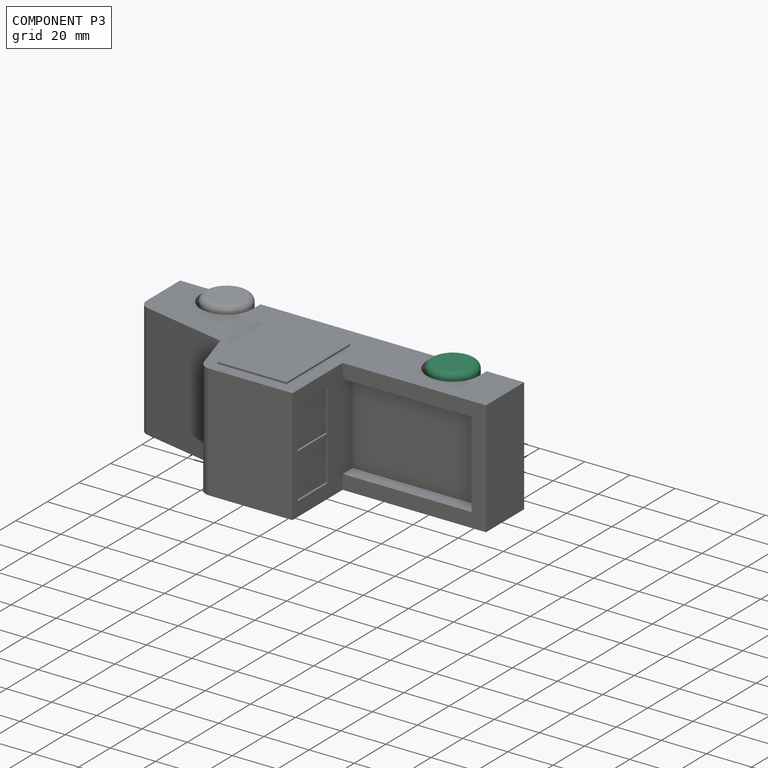
[diagram: component P3 — assembled]
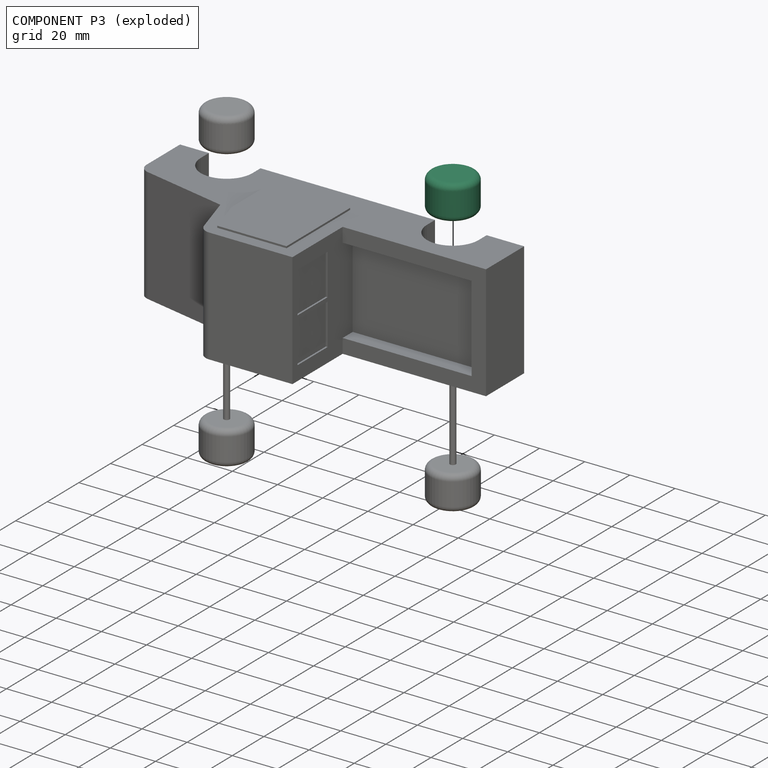
[diagram: component P3 — exploded]
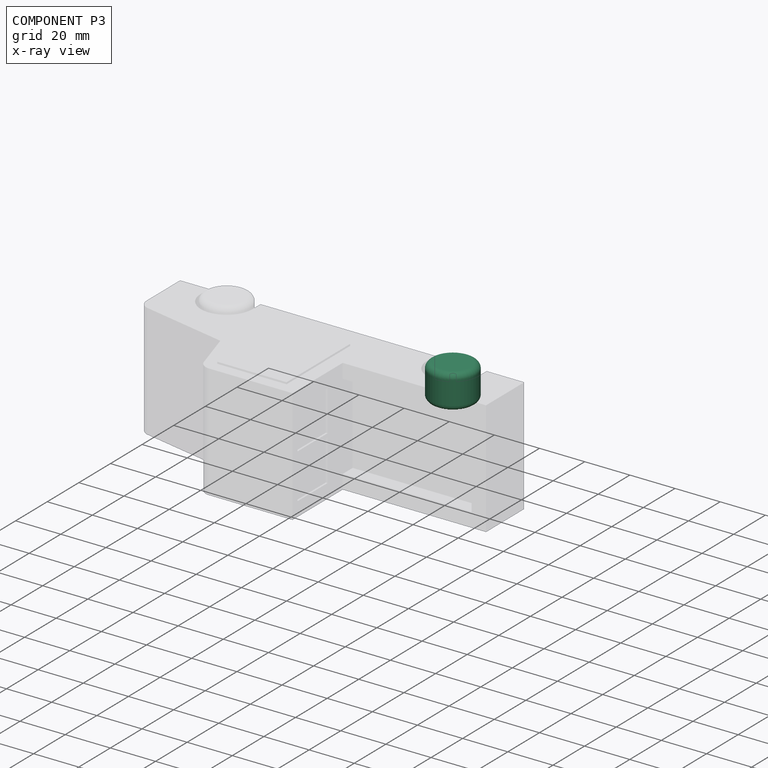
[diagram: component P3 — x-ray view]
COMPONENT P3 — same part as P2 (CADFS 00677585); its construction recipe is shown at P2.
Held by: FASTENED mate "Fastened 2" to P0.
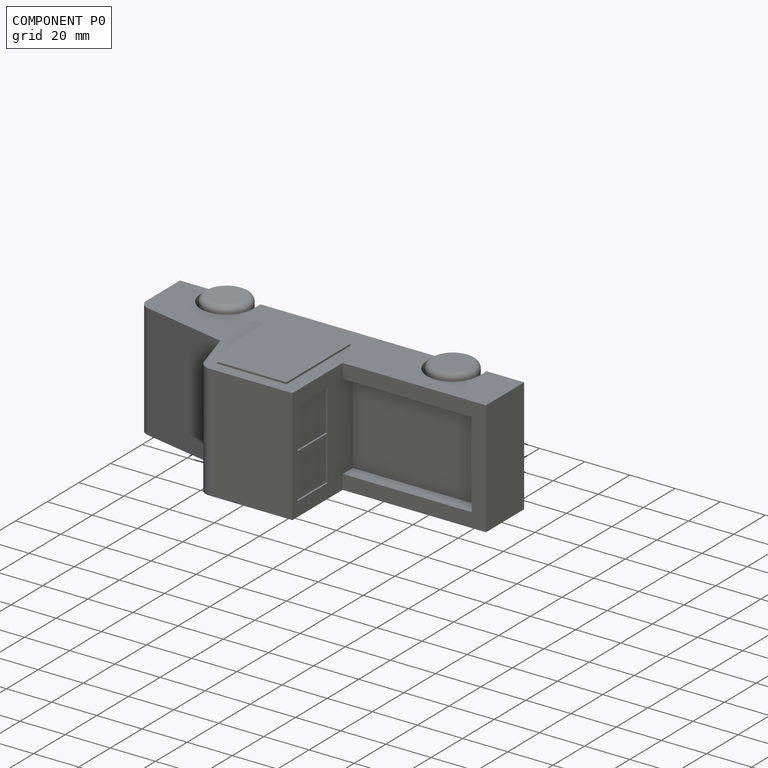
[diagram: component P0 — assembled]
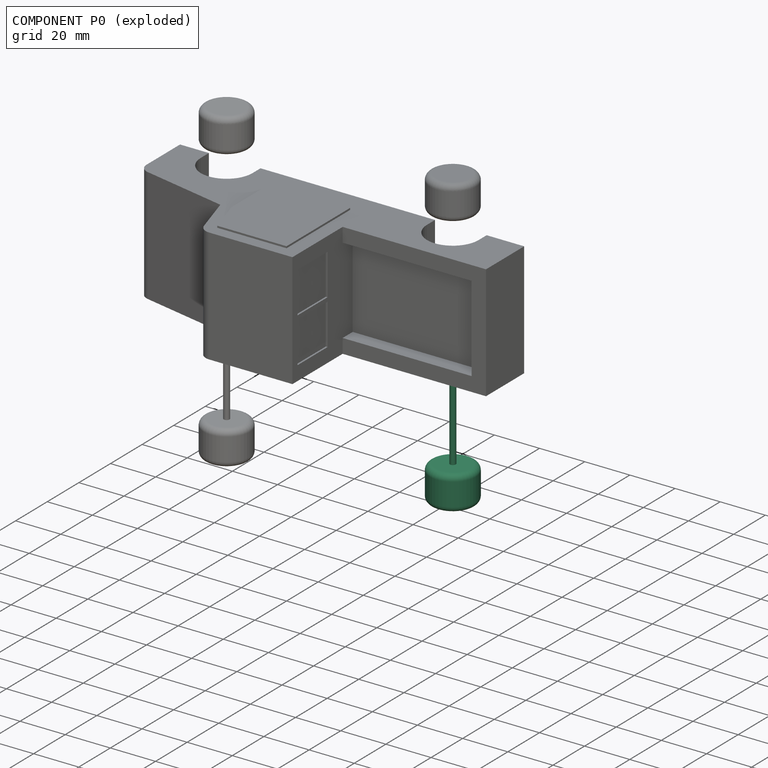
[diagram: component P0 — exploded]
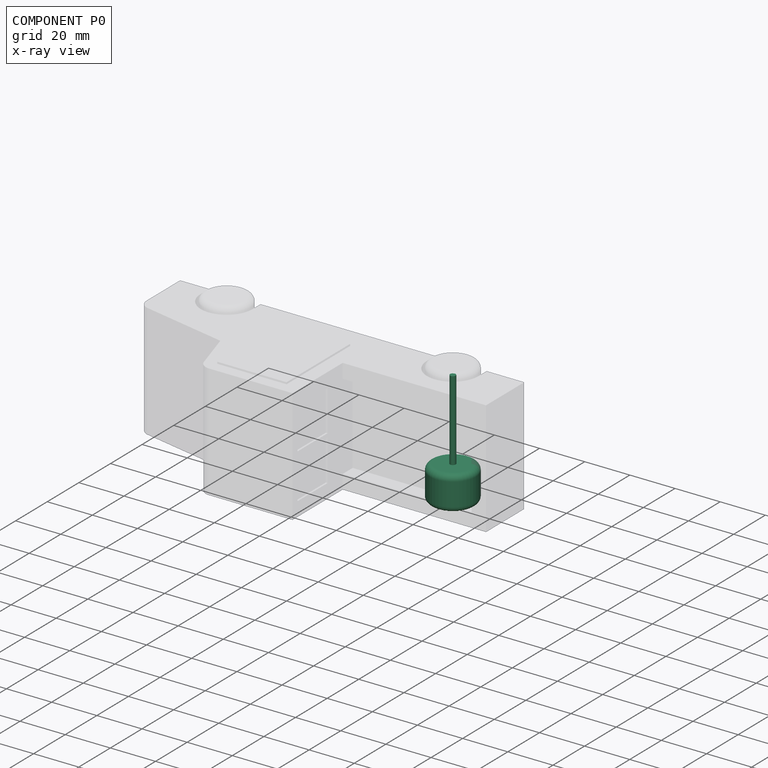
[diagram: component P0 — x-ray view]
COMPONENT P0 — recipe-attached (CADFS 00677584, mesh-verified: the recipe's output STEP matches this component's geometry to below the mesh-comparison resolution (tessellation chordal tolerance ~0.0875 mm)).
Held by: FASTENED mate "Fastened 1" to P1; FASTENED mate "Fastened 2" to P3.
Construction recipe (FeatureScript — the CAD program that rebuilds this solid; sketch coordinates are in the units given by the * unit suffixes, e.g. mm):

FeatureScript 1511;
import(path : "onshape/std/geometry.fs", version : "1511.0");
import(path : "onshape/std/common.fs", version : "1511.0");
const mm = millimeter;
const VERTEX = EntityType.VERTEX;
const EDGE = EntityType.EDGE;
const FACE = EntityType.FACE;
const BODY = EntityType.BODY;
function v(x, y){return vector(x, y);}
function OD(order){return orderDisambiguation(order);}
function OSD(set){return originalSetDisambiguation(set);}
function TD(topology){return topologyDisambiguation(topology);}
function TDD(query){return trueDependencyDisambiguation(query);}
function sQuery(a, b, c) {return sketchEntityQuery(a, b, c);}

annotation { "Feature Type Name" : "Feature", "Feature Type Description" : "" }
export const myFeature = defineFeature(function(context is Context, id is Id, definition is map)
    precondition{}
    {
        {
            var Q0;
            Q0=qCreatedBy(makeId("Top.planeOp"),FACE);
            var sketch = newSketch(context, id + "F0", { "sketchPlane" : qUnion([Q0])});
            skCircle(sketch, "E0", {"center": v(0, 0) * mm, "radius": 10.16 * mm});
            skSolve(sketch);
        }
        {
            var Q0;
            Q0=makeQuery(id+"F0.imprint","IMPRINT",FACE,{"disambiguationData":[TD([[makeQuery(id+"F0.imprint","IMPRINT",EDGE,{"derivedFrom":sQuery(id+"F0.wireOp",EDGE,"E0")}),1.0]])]});
            extrude(context, id + "F1", {"entities" : qUnion([Q0]), "depth" : 15.24 * mm, "offsetDistance" : 25.4 * mm});
        }
        {
            var Q0;
            Q0=makeQuery(id+"F1.opExtrude","CAP_EDGE",EDGE,{"disambiguationData":[OSD([sQuery(id+"F0.wireOp",EDGE,"E0")])],"isStart":false});
            var Q1;
            Q1=makeQuery(id+"F1.opExtrude","CAP_EDGE",EDGE,{"disambiguationData":[OSD([sQuery(id+"F0.wireOp",EDGE,"E0")])],"isStart":true});
            fillet(context, id + "F2", {"entities" : qUnion([Q0, Q1]), "radius" : 2.54 * mm, "tangentPropagation" : true, "allowEdgeOverflow" : false});
        }
        {
            var Q0;
            Q0=makeQuery(id+"F1.opExtrude","CAP_FACE",FACE,{"disambiguationData":[OSD([sQuery(id+"F0.wireOp",EDGE,"E0")])],"isStart":false});
            var sketch = newSketch(context, id + "F3", { "sketchPlane" : qUnion([Q0])});
            skCircle(sketch, "E1", {"center": v(0, 0) * mm, "radius": 1.27 * mm});
            skSolve(sketch);
        }
        {
            var Q0;
            Q0 = qSketchRegion(id + "F3", true);
            extrude(context, id + "F4", {"entities" : qUnion([Q0]), "operationType" : NewBodyOperationType.ADD, "depth" : 35.56 * mm, "offsetDistance" : 25.4 * mm});
        }
    });
PROVENANCE & LICENSES
Assembly (occurrences, transforms, mates, per-part STEP geometry): AutoMate dataset, Zenodo record 7776208, CC0.
Construction recipes: CADFS (HuggingFace VladPyatov/CADFS, CC-BY-4.0, layered over the ABC dataset), FeatureScript reconstruction programs keyed by ABC model id.
Join: ABC meta listings map ABC model id -> Onshape documentId; within a shared document, parts are matched by geometric signature (bounding-box dims + volume at 0.1% relative tolerance, exact B-rep face/solid counts).
Verification: 5 of this assembly's 5 components carry a recipe attachment, and every attachment is mesh-verified: the CADFS STEP and the AutoMate member STEP were compared as meshes in their shared local frame (symmetric sampled-point-to-mesh distance); worst across the 5 attachments: below the mesh-comparison resolution (tessellation chordal tolerance ~0.259 mm) on a 173 mm part.
Renders: orthographic iso camera (az 35 / el 25); the floor grid conveys scale (grid pitch printed in each image; no ruler). In the exploded view each component is displaced by its stored offset vector: the offsets alone carry the explosion direction (mate normal/axis signs are not orientation cues and do not encode it), and separation distances are assigned per mate-chain, not proportionally to assembly-order depth.
